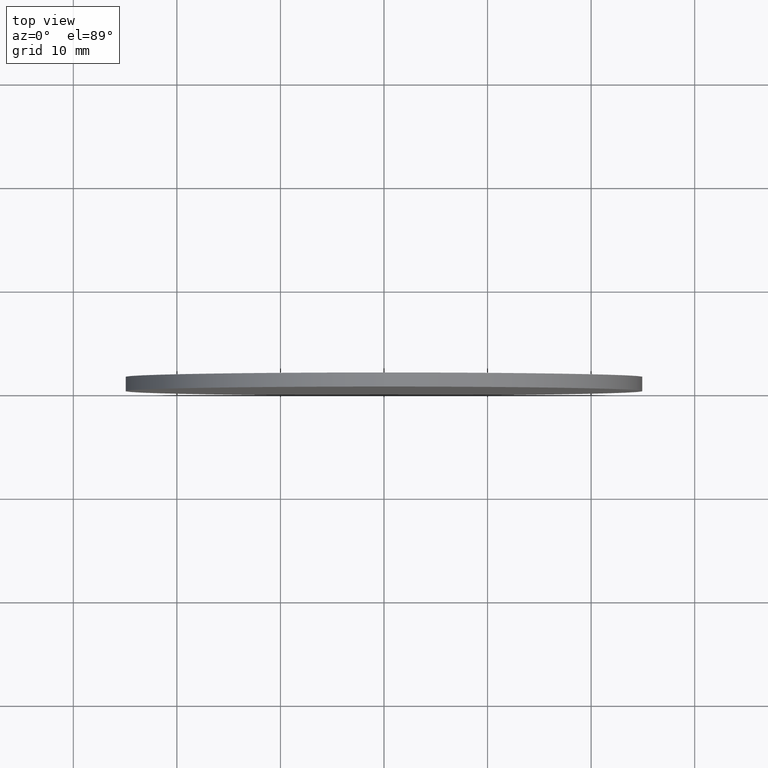
[diagram: clean part render]
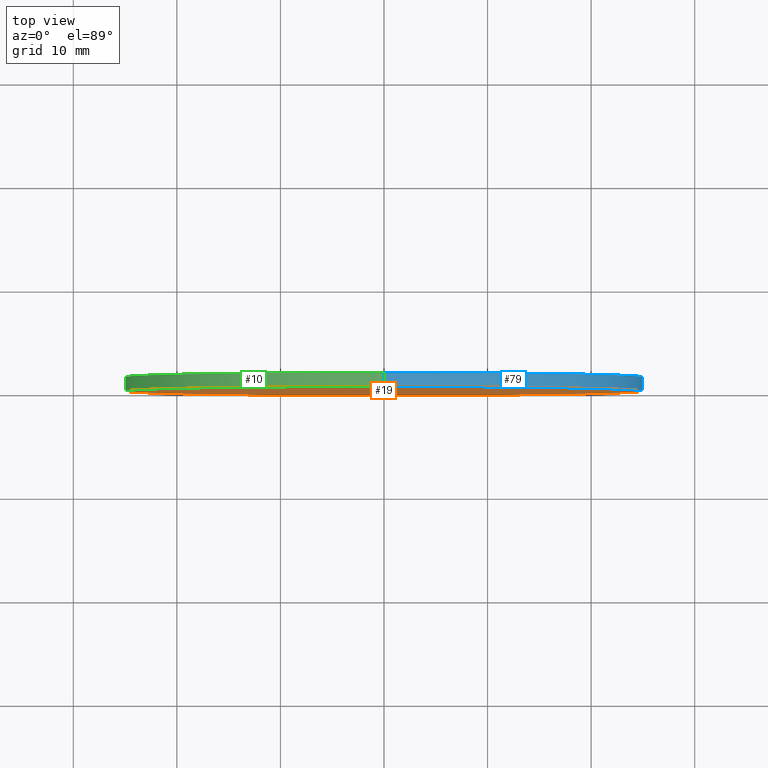
[diagram: same view with three faces highlighted in distinct colors, each labeled with its STEP entity id]
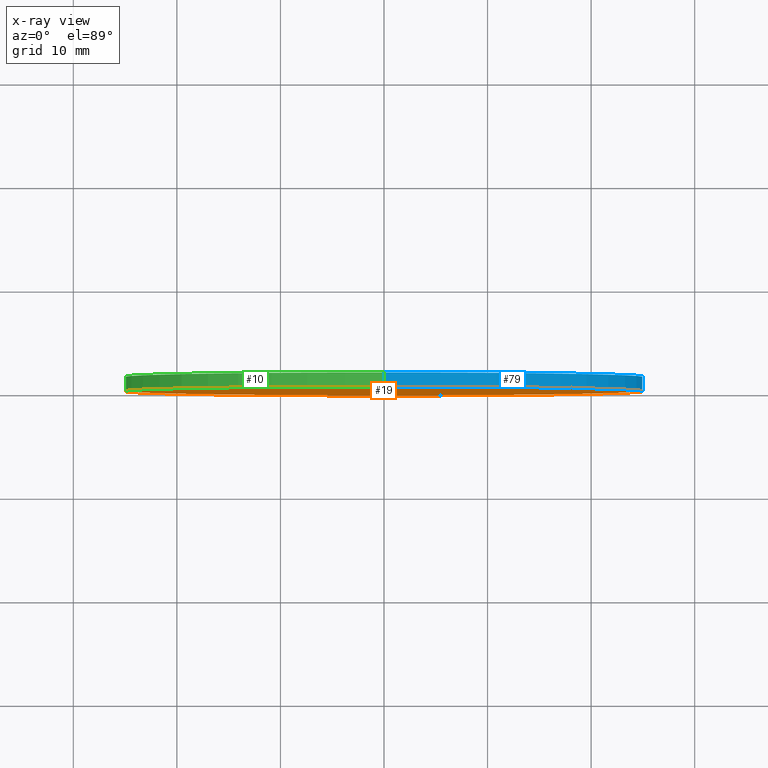
[diagram: x-ray of the same camera — body ghosted, the three highlighted faces saturated]
A machine part, top view with three faces highlighted in distinct colors.
The next image is the same camera in x-ray (body ghosted, the three faces saturated) — at least one of them is partly hidden behind the body in this view.
Their STEP definitions:

[orange] entity #19 — the highlighted planar face has unit normal (0, 1, 0).
#7 = DIRECTION ( 'NONE',  ( 0.0000000000000000000, 0.0000000000000000000, 1.000000000000000000 ) ) ;
#8 = EDGE_CURVE ( 'NONE', #28, #107, #33, .T. ) ;
#9 = DIRECTION ( 'NONE',  ( 0.0000000000000000000, 0.0000000000000000000, 1.000000000000000000 ) ) ;
#11 = FACE_OUTER_BOUND ( 'NONE', #50, .T. ) ;
#18 = CIRCLE ( 'NONE', #92, 25.00000000000000000 ) ;
#19 = ADVANCED_FACE ( 'NONE', ( #11 ), #38, .F. ) ;
#21 = CARTESIAN_POINT ( 'NONE',  ( 0.0000000000000000000, 0.0000000000000000000, -25.00000000000000000 ) ) ;
#26 = DIRECTION ( 'NONE',  ( 0.0000000000000000000, -0.0000000000000000000, 1.000000000000000000 ) ) ;
#28 = VERTEX_POINT ( 'NONE', #129 ) ;
#31 = DIRECTION ( 'NONE',  ( 0.0000000000000000000, 1.000000000000000000, 0.0000000000000000000 ) ) ;
#33 = CIRCLE ( 'NONE', #111, 25.00000000000000000 ) ;
#38 = PLANE ( 'NONE',  #76 ) ;
#47 = CARTESIAN_POINT ( 'NONE',  ( 0.0000000000000000000, 0.0000000000000000000, 0.0000000000000000000 ) ) ;
#50 = EDGE_LOOP ( 'NONE', ( #56, #135 ) ) ;
#56 = ORIENTED_EDGE ( 'NONE', *, *, #105, .F. ) ;
#74 = CARTESIAN_POINT ( 'NONE',  ( 0.0000000000000000000, 0.0000000000000000000, 0.0000000000000000000 ) ) ;
#76 = AXIS2_PLACEMENT_3D ( 'NONE', #74, #114, #26 ) ;
#92 = AXIS2_PLACEMENT_3D ( 'NONE', #96, #112, #9 ) ;
#96 = CARTESIAN_POINT ( 'NONE',  ( 0.0000000000000000000, 0.0000000000000000000, 0.0000000000000000000 ) ) ;
#105 = EDGE_CURVE ( 'NONE', #107, #28, #18, .T. ) ;
#107 = VERTEX_POINT ( 'NONE', #21 ) ;
#111 = AXIS2_PLACEMENT_3D ( 'NONE', #47, #31, #7 ) ;
#112 = DIRECTION ( 'NONE',  ( 0.0000000000000000000, 1.000000000000000000, 0.0000000000000000000 ) ) ;
#114 = DIRECTION ( 'NONE',  ( 0.0000000000000000000, 1.000000000000000000, 0.0000000000000000000 ) ) ;
#129 = CARTESIAN_POINT ( 'NONE',  ( 3.061616997868383000E-015, 0.0000000000000000000, 25.00000000000000000 ) ) ;
#135 = ORIENTED_EDGE ( 'NONE', *, *, #8, .F. ) ;

[blue] entity #79 — the highlighted cylindrical surface (partial cylindrical patch) has radius 25 mm, axis along (-0, -1, -0).
#2 = DIRECTION ( 'NONE',  ( 0.0000000000000000000, 0.0000000000000000000, -1.000000000000000000 ) ) ;
#5 = AXIS2_PLACEMENT_3D ( 'NONE', #122, #13, #2 ) ;
#7 = DIRECTION ( 'NONE',  ( 0.0000000000000000000, 0.0000000000000000000, 1.000000000000000000 ) ) ;
#8 = EDGE_CURVE ( 'NONE', #28, #107, #33, .T. ) ;
#13 = DIRECTION ( 'NONE',  ( -0.0000000000000000000, -1.000000000000000000, -0.0000000000000000000 ) ) ;
#20 = DIRECTION ( 'NONE',  ( 0.0000000000000000000, 1.000000000000000000, 0.0000000000000000000 ) ) ;
#21 = CARTESIAN_POINT ( 'NONE',  ( 0.0000000000000000000, 0.0000000000000000000, -25.00000000000000000 ) ) ;
#22 = LINE ( 'NONE', #75, #49 ) ;
#28 = VERTEX_POINT ( 'NONE', #129 ) ;
#30 = CYLINDRICAL_SURFACE ( 'NONE', #5, 25.00000000000000000 ) ;
#31 = DIRECTION ( 'NONE',  ( 0.0000000000000000000, 1.000000000000000000, 0.0000000000000000000 ) ) ;
#33 = CIRCLE ( 'NONE', #111, 25.00000000000000000 ) ;
#36 = ORIENTED_EDGE ( 'NONE', *, *, #8, .T. ) ;
#47 = CARTESIAN_POINT ( 'NONE',  ( 0.0000000000000000000, 0.0000000000000000000, 0.0000000000000000000 ) ) ;
#48 = ORIENTED_EDGE ( 'NONE', *, *, #115, .F. ) ;
#49 = VECTOR ( 'NONE', #80, 1000.000000000000000 ) ;
#52 = EDGE_CURVE ( 'NONE', #93, #28, #22, .T. ) ;
#57 = DIRECTION ( 'NONE',  ( 0.0000000000000000000, 0.0000000000000000000, 1.000000000000000000 ) ) ;
#59 = CARTESIAN_POINT ( 'NONE',  ( 0.0000000000000000000, 1.360000000000000100, -25.00000000000000000 ) ) ;
#63 = VECTOR ( 'NONE', #128, 1000.000000000000000 ) ;
#64 = CARTESIAN_POINT ( 'NONE',  ( 0.0000000000000000000, 1.360000000000000100, 0.0000000000000000000 ) ) ;
#75 = CARTESIAN_POINT ( 'NONE',  ( 3.061616997868383000E-015, 1.360000000000000100, 25.00000000000000000 ) ) ;
#79 = ADVANCED_FACE ( 'NONE', ( #124 ), #30, .T. ) ;
#80 = DIRECTION ( 'NONE',  ( -0.0000000000000000000, -1.000000000000000000, -0.0000000000000000000 ) ) ;
#85 = EDGE_LOOP ( 'NONE', ( #140, #138, #36, #48 ) ) ;
#93 = VERTEX_POINT ( 'NONE', #139 ) ;
#97 = CARTESIAN_POINT ( 'NONE',  ( 0.0000000000000000000, 1.360000000000000100, -25.00000000000000000 ) ) ;
#99 = CIRCLE ( 'NONE', #118, 25.00000000000000000 ) ;
#101 = LINE ( 'NONE', #97, #63 ) ;
#107 = VERTEX_POINT ( 'NONE', #21 ) ;
#109 = VERTEX_POINT ( 'NONE', #59 ) ;
#111 = AXIS2_PLACEMENT_3D ( 'NONE', #47, #31, #7 ) ;
#115 = EDGE_CURVE ( 'NONE', #109, #107, #101, .T. ) ;
#118 = AXIS2_PLACEMENT_3D ( 'NONE', #64, #20, #57 ) ;
#121 = EDGE_CURVE ( 'NONE', #93, #109, #99, .T. ) ;
#122 = CARTESIAN_POINT ( 'NONE',  ( 0.0000000000000000000, 1.360000000000000100, 0.0000000000000000000 ) ) ;
#124 = FACE_OUTER_BOUND ( 'NONE', #85, .T. ) ;
#128 = DIRECTION ( 'NONE',  ( -0.0000000000000000000, -1.000000000000000000, -0.0000000000000000000 ) ) ;
#129 = CARTESIAN_POINT ( 'NONE',  ( 3.061616997868383000E-015, 0.0000000000000000000, 25.00000000000000000 ) ) ;
#138 = ORIENTED_EDGE ( 'NONE', *, *, #52, .T. ) ;
#139 = CARTESIAN_POINT ( 'NONE',  ( 3.061616997868383000E-015, 1.360000000000000100, 25.00000000000000000 ) ) ;
#140 = ORIENTED_EDGE ( 'NONE', *, *, #121, .F. ) ;

[green] entity #10 — the highlighted cylindrical surface (partial cylindrical patch) has radius 25 mm, axis along (-0, -1, -0).
#6 = ORIENTED_EDGE ( 'NONE', *, *, #52, .F. ) ;
#9 = DIRECTION ( 'NONE',  ( 0.0000000000000000000, 0.0000000000000000000, 1.000000000000000000 ) ) ;
#10 = ADVANCED_FACE ( 'NONE', ( #102 ), #108, .T. ) ;
#15 = DIRECTION ( 'NONE',  ( 0.0000000000000000000, 0.0000000000000000000, -1.000000000000000000 ) ) ;
#18 = CIRCLE ( 'NONE', #92, 25.00000000000000000 ) ;
#21 = CARTESIAN_POINT ( 'NONE',  ( 0.0000000000000000000, 0.0000000000000000000, -25.00000000000000000 ) ) ;
#22 = LINE ( 'NONE', #75, #49 ) ;
#28 = VERTEX_POINT ( 'NONE', #129 ) ;
#39 = DIRECTION ( 'NONE',  ( 0.0000000000000000000, 0.0000000000000000000, 1.000000000000000000 ) ) ;
#49 = VECTOR ( 'NONE', #80, 1000.000000000000000 ) ;
#52 = EDGE_CURVE ( 'NONE', #93, #28, #22, .T. ) ;
#59 = CARTESIAN_POINT ( 'NONE',  ( 0.0000000000000000000, 1.360000000000000100, -25.00000000000000000 ) ) ;
#63 = VECTOR ( 'NONE', #128, 1000.000000000000000 ) ;
#67 = ORIENTED_EDGE ( 'NONE', *, *, #105, .T. ) ;
#70 = CARTESIAN_POINT ( 'NONE',  ( 0.0000000000000000000, 1.360000000000000100, 0.0000000000000000000 ) ) ;
#75 = CARTESIAN_POINT ( 'NONE',  ( 3.061616997868383000E-015, 1.360000000000000100, 25.00000000000000000 ) ) ;
#78 = DIRECTION ( 'NONE',  ( 0.0000000000000000000, 1.000000000000000000, 0.0000000000000000000 ) ) ;
#80 = DIRECTION ( 'NONE',  ( -0.0000000000000000000, -1.000000000000000000, -0.0000000000000000000 ) ) ;
#83 = AXIS2_PLACEMENT_3D ( 'NONE', #103, #78, #39 ) ;
#86 = AXIS2_PLACEMENT_3D ( 'NONE', #70, #119, #15 ) ;
#87 = ORIENTED_EDGE ( 'NONE', *, *, #115, .T. ) ;
#88 = CIRCLE ( 'NONE', #83, 25.00000000000000000 ) ;
#92 = AXIS2_PLACEMENT_3D ( 'NONE', #96, #112, #9 ) ;
#93 = VERTEX_POINT ( 'NONE', #139 ) ;
#96 = CARTESIAN_POINT ( 'NONE',  ( 0.0000000000000000000, 0.0000000000000000000, 0.0000000000000000000 ) ) ;
#97 = CARTESIAN_POINT ( 'NONE',  ( 0.0000000000000000000, 1.360000000000000100, -25.00000000000000000 ) ) ;
#100 = ORIENTED_EDGE ( 'NONE', *, *, #127, .F. ) ;
#101 = LINE ( 'NONE', #97, #63 ) ;
#102 = FACE_OUTER_BOUND ( 'NONE', #116, .T. ) ;
#103 = CARTESIAN_POINT ( 'NONE',  ( 0.0000000000000000000, 1.360000000000000100, 0.0000000000000000000 ) ) ;
#105 = EDGE_CURVE ( 'NONE', #107, #28, #18, .T. ) ;
#107 = VERTEX_POINT ( 'NONE', #21 ) ;
#108 = CYLINDRICAL_SURFACE ( 'NONE', #86, 25.00000000000000000 ) ;
#109 = VERTEX_POINT ( 'NONE', #59 ) ;
#112 = DIRECTION ( 'NONE',  ( 0.0000000000000000000, 1.000000000000000000, 0.0000000000000000000 ) ) ;
#115 = EDGE_CURVE ( 'NONE', #109, #107, #101, .T. ) ;
#116 = EDGE_LOOP ( 'NONE', ( #6, #100, #87, #67 ) ) ;
#119 = DIRECTION ( 'NONE',  ( -0.0000000000000000000, -1.000000000000000000, -0.0000000000000000000 ) ) ;
#127 = EDGE_CURVE ( 'NONE', #109, #93, #88, .T. ) ;
#128 = DIRECTION ( 'NONE',  ( -0.0000000000000000000, -1.000000000000000000, -0.0000000000000000000 ) ) ;
#129 = CARTESIAN_POINT ( 'NONE',  ( 3.061616997868383000E-015, 0.0000000000000000000, 25.00000000000000000 ) ) ;
#139 = CARTESIAN_POINT ( 'NONE',  ( 3.061616997868383000E-015, 1.360000000000000100, 25.00000000000000000 ) ) ;